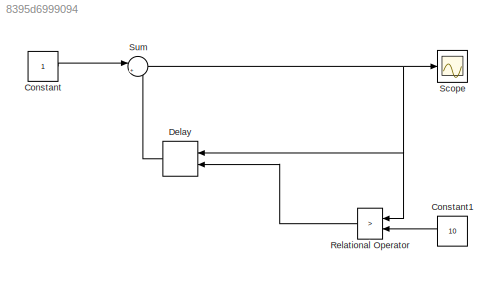
MODEL slx_8395d6999094
KIND model
BLOCK [Constant] Constant
BLOCK [Constant] Constant1
  Value = 10
BLOCK [Delay] Delay
  DelayLength = 1
  ExternalReset = Level
  InitialCondition = 0
  InputPortMap = u0,r5
  Ports = [2, 1]
BLOCK [RelationalOperator] Relational Operator
  InputSameDT = off
  Operator = >
  OutDataTypeStr = boolean
  Ports = [2, 1]
  ZeroCross = off
BLOCK [Scope] Scope
  DataFormat = StructureWithTime
  Floating = off
  NumInputPorts = 1
  Ports = [1]
  SampleTime = 0
  ShowLegends = off
BLOCK [Sum] Sum
  IconShape = round
  InputSameDT = off
  Inputs = |++
  OutDataTypeStr = Inherit: Inherit via internal rule
  Ports = [2, 1]
  SaturateOnIntegerOverflow = off
LINE Constant1:1 -> Relational Operator:2
LINE Constant:1 -> Sum:1
LINE Delay:1 -> Sum:2
LINE Relational Operator:1 -> Delay:2
NET Sum:1 -> Delay:1, Relational Operator:1, Scope:1
note: NET lines group one-source signal fan-out (src -> all destinations, sorted); 1:1 wires keep LINE
